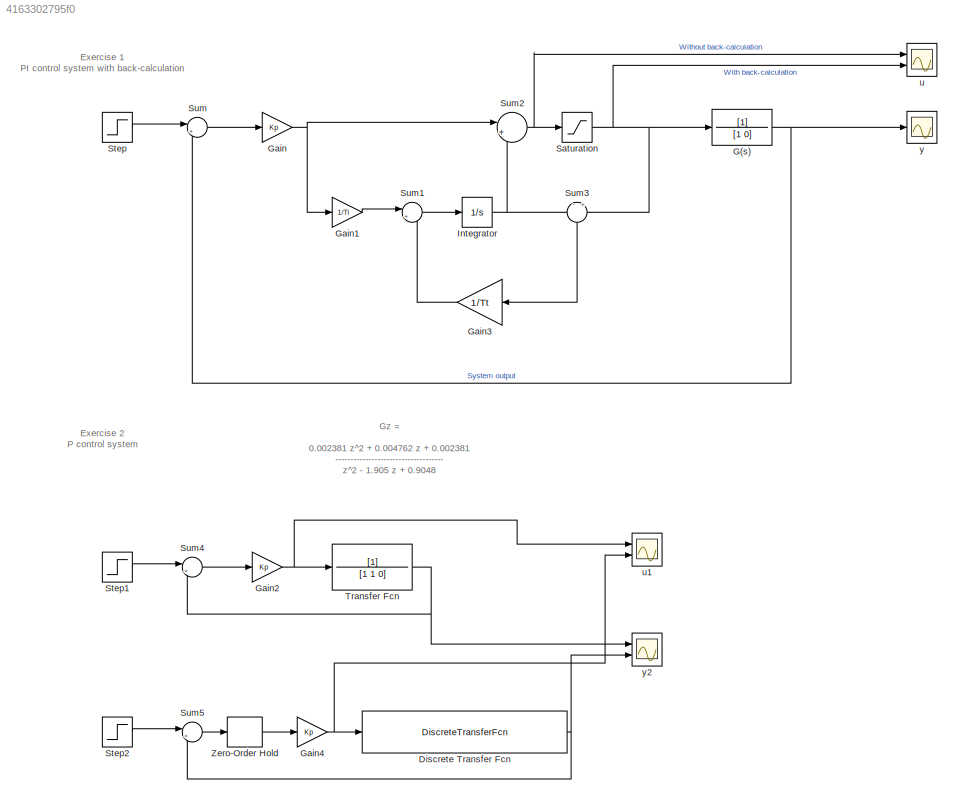
MODEL slx_4163302795f0
KIND model
CONFIG AbsTol = auto
CONFIG EnableMultiTasking = off
CONFIG FixedStep = auto
CONFIG MaxStep = auto
CONFIG MinStep = auto
CONFIG RelTol = 1e-3
CONFIG SampleTimeConstraint = Unconstrained
CONFIG SolverName = VariableStepAuto
CONFIG StartTime = 0.0
CONFIG StopTime = 10.0
BLOCK [DiscreteTransferFcn] Discrete Transfer Fcn
  Denominator = [1 -1.905 0.9048]
  InputPortMap = u0
  Numerator = [0.002381 0.004762 0.002381]
  Ports = [1, 1]
BLOCK [TransferFcn] G(s)
  Commented = on
  Denominator = [1 0]
BLOCK [Gain] Gain
  Commented = on
  Gain = Kp
BLOCK [Gain] Gain1
  Commented = on
  Gain = 1/Ti
BLOCK [Gain] Gain2
  Gain = Kp
BLOCK [Gain] Gain3
  Commented = on
  Gain = 1/Tt
BLOCK [Gain] Gain4
  Gain = Kp
BLOCK [Integrator] Integrator
  Commented = on
  Ports = [1, 1]
BLOCK [Saturate] Saturation
  Commented = on
  LowerLimit = -1
  UpperLimit = 1
BLOCK [Step] Step
  Commented = on
  SampleTime = 0
BLOCK [Step] Step1
  SampleTime = 0
BLOCK [Step] Step2
  SampleTime = 0
BLOCK [Sum] Sum
  Commented = on
  Inputs = |+-
  Ports = [2, 1]
BLOCK [Sum] Sum1
  Commented = on
  Inputs = |++
  Ports = [2, 1]
BLOCK [Sum] Sum2
  Commented = on
  Inputs = |++
  Ports = [2, 1]
BLOCK [Sum] Sum3
  Commented = on
  Inputs = -||+
  NameLocation = left
  Ports = [2, 1]
BLOCK [Sum] Sum4
  Inputs = |+-
  Ports = [2, 1]
BLOCK [Sum] Sum5
  Inputs = |+-
  Ports = [2, 1]
BLOCK [TransferFcn] Transfer Fcn
  Denominator = [1 1 0]
BLOCK [ZeroOrderHold] Zero-Order Hold
  SampleTime = T
BLOCK [Scope] u
  Commented = on
  Floating = off
  NumInputPorts = 2
  Ports = [2]
  ScopeSpecificationString = Simulink.scopes.TimeScopeBlockCfg('CurrentConfiguration', extmgr.ConfigurationSet(extmgr.Configuration('Core','General UI',true),extmgr.Configuration('Core','Source UI',true),extmgr.Configuration('Sources','WiredSimulink',true,'DataLoggingVariableName','ScopeData1'),extmgr.Configuration('Visuals','Time Domain',true,'SerializedDisplays',{struct('MinYLimReal','-0.4486','MaxYLimReal','2.27207','YLabe...<+1956ch>
BLOCK [Scope] u1
  Floating = off
  NumInputPorts = 2
  Ports = [2]
  ScopeSpecificationString = Simulink.scopes.TimeScopeBlockCfg('CurrentConfiguration', extmgr.ConfigurationSet(extmgr.Configuration('Core','General UI',true),extmgr.Configuration('Core','Source UI',true),extmgr.Configuration('Sources','WiredSimulink',true,'DataLoggingVariableName','ScopeData3'),extmgr.Configuration('Visuals','Time Domain',true,'SerializedDisplays',{struct('MinYLimReal','-0.14909','MaxYLimReal','0.75727','YLab...<+2022ch>
BLOCK [Scope] y
  Commented = on
  Floating = off
  NumInputPorts = 1
  Ports = [1]
  ScopeSpecificationString = Simulink.scopes.TimeScopeBlockCfg('CurrentConfiguration', extmgr.ConfigurationSet(extmgr.Configuration('Core','General UI',true),extmgr.Configuration('Core','Source UI',true),extmgr.Configuration('Sources','WiredSimulink',true),extmgr.Configuration('Visuals','Time Domain',true,'SerializedDisplays',{struct('MinYLimReal','-0.15352','MaxYLimReal','1.3817','YLabelReal','','MinYLimMag','0.00000','MaxYL...<+1351ch>
BLOCK [Scope] y2
  Floating = off
  NumInputPorts = 2
  Ports = [2]
  ScopeSpecificationString = Simulink.scopes.TimeScopeBlockCfg('CurrentConfiguration', extmgr.ConfigurationSet(extmgr.Configuration('Core','General UI',true),extmgr.Configuration('Core','Source UI',true),extmgr.Configuration('Sources','WiredSimulink',true,'DataLoggingVariableName','ScopeData4'),extmgr.Configuration('Visuals','Time Domain',true,'SerializedDisplays',{struct('MinYLimReal','-0.13596','MaxYLimReal','1.22365','YLab...<+2044ch>
ANNOTATION (root): Exercise 1 PI control system with back-calculation
ANNOTATION (root): Exercise 2 P control system
ANNOTATION (root): Gz = 0.002381 z^2 + 0.004762 z + 0.002381 ------------------------------------ z^2 - 1.905 z + 0.9048
NET Discrete Transfer Fcn:1 -> Sum5:2, y2:2
NET G(s):1 -> Sum:2, y:1
LINE Gain1:1 -> Sum1:1
NET Gain2:1 -> Transfer Fcn:1, u1:1
LINE Gain3:1 -> Sum1:2
NET Gain4:1 -> Discrete Transfer Fcn:1, u1:2
NET Gain:1 -> Gain1:1, Sum2:1
NET Integrator:1 -> Sum2:2, Sum3:1
NET Saturation:1 -> G(s):1, Sum3:2, u:2
LINE Step1:1 -> Sum4:1
LINE Step2:1 -> Sum5:1
LINE Step:1 -> Sum:1
LINE Sum1:1 -> Integrator:1
NET Sum2:1 -> Saturation:1, u:1
LINE Sum3:1 -> Gain3:1
LINE Sum4:1 -> Gain2:1
LINE Sum5:1 -> Zero-Order Hold:1
LINE Sum:1 -> Gain:1
NET Transfer Fcn:1 -> Sum4:2, y2:1
LINE Zero-Order Hold:1 -> Gain4:1
note: NET lines group one-source signal fan-out (src -> all destinations, sorted); 1:1 wires keep LINE
